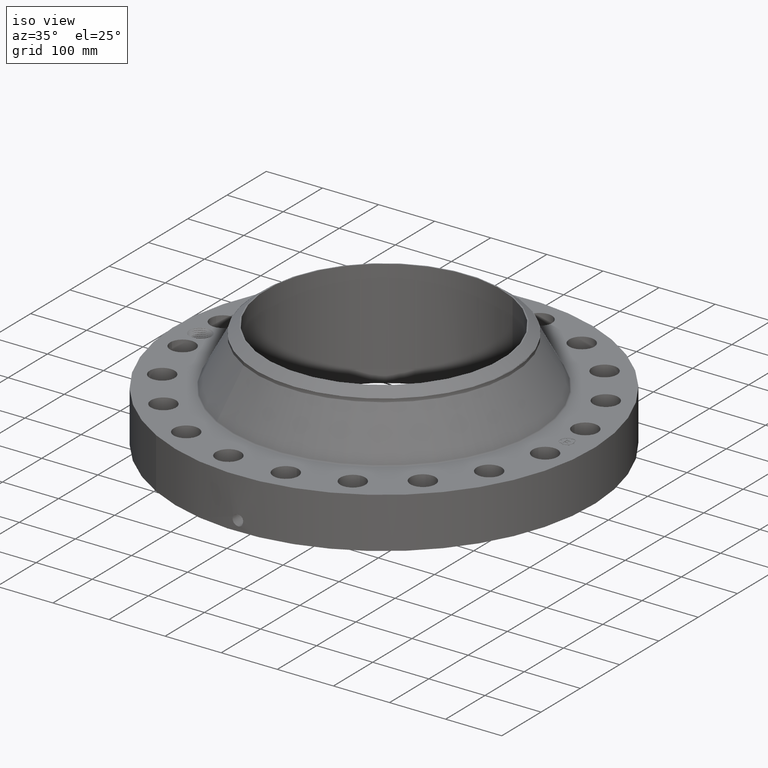
[diagram: clean part render]
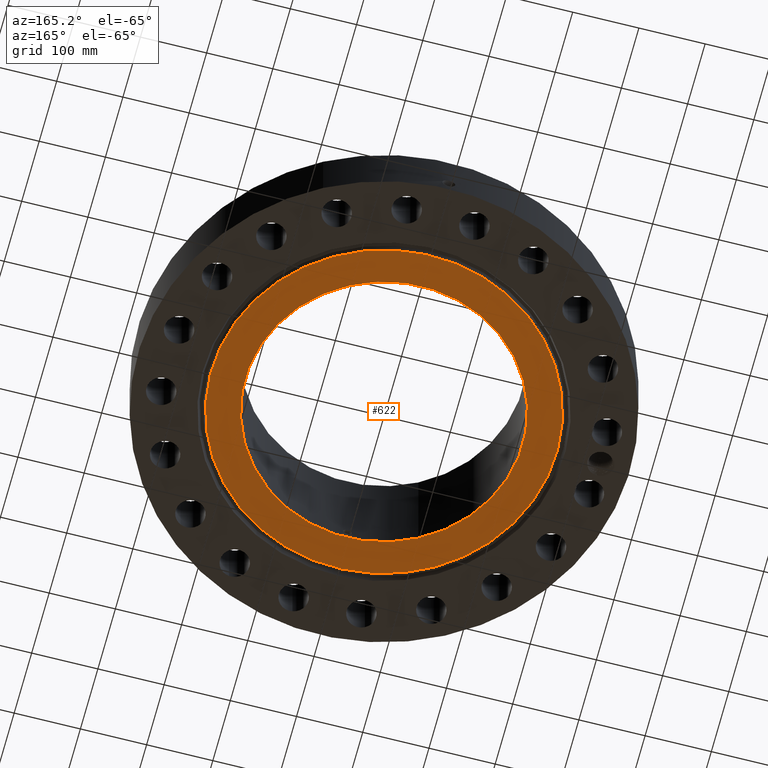
[diagram: tour spotlight — one face highlighted and labeled with its STEP entity id]
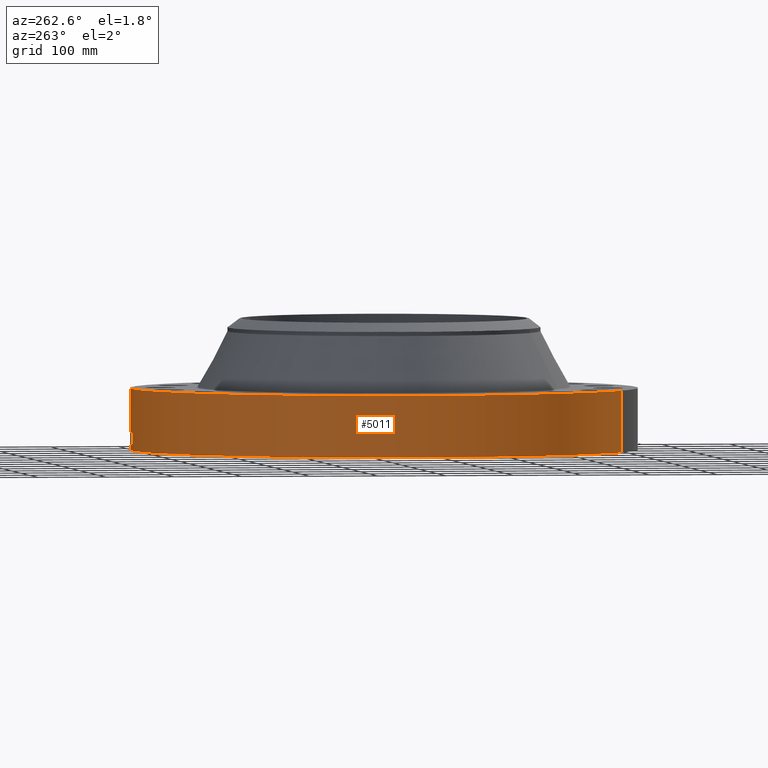
[diagram: tour spotlight — one face highlighted and labeled with its STEP entity id]
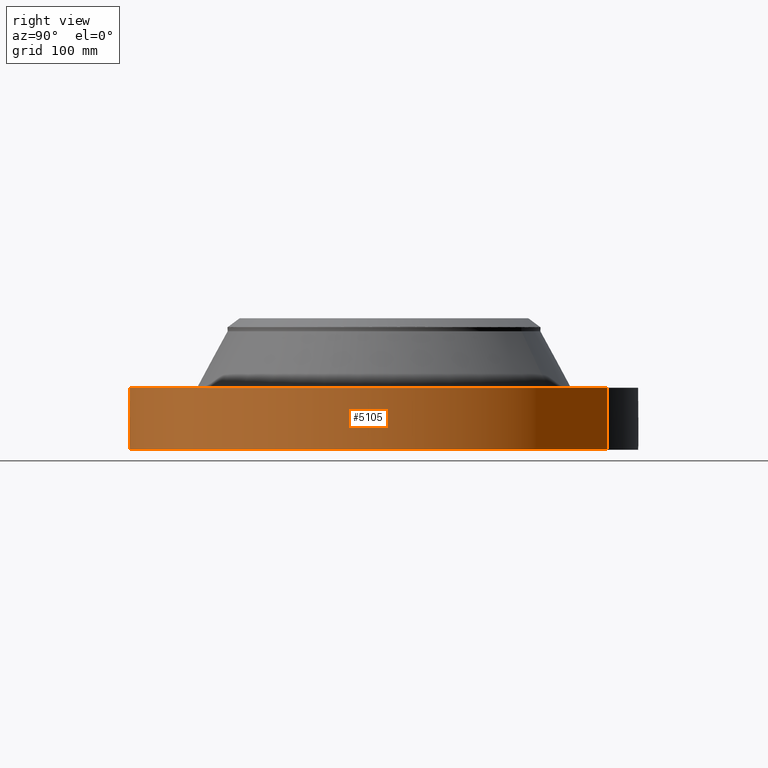
[diagram: tour spotlight — one face highlighted and labeled with its STEP entity id]
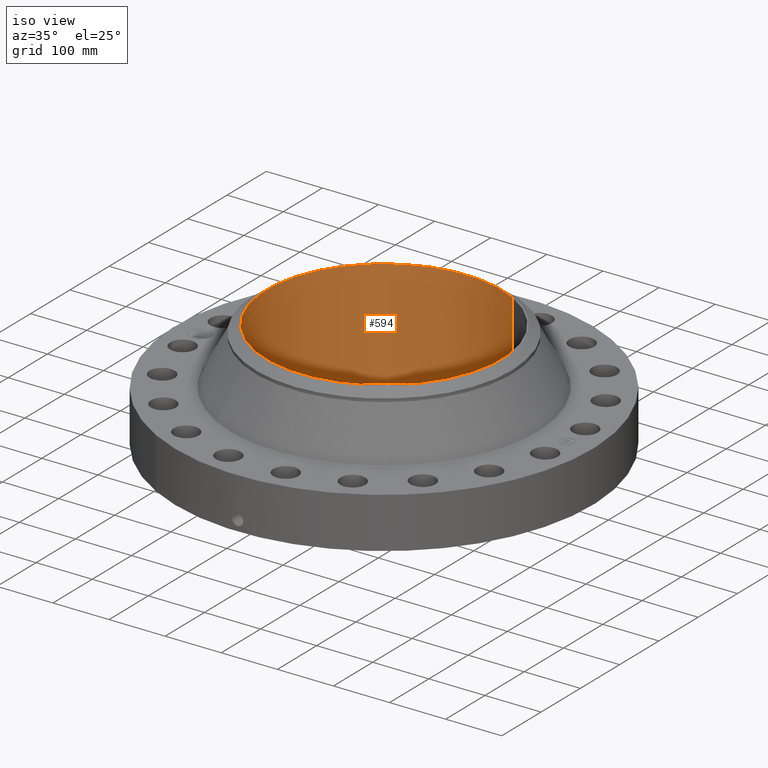
[diagram: tour spotlight — one face highlighted and labeled with its STEP entity id]
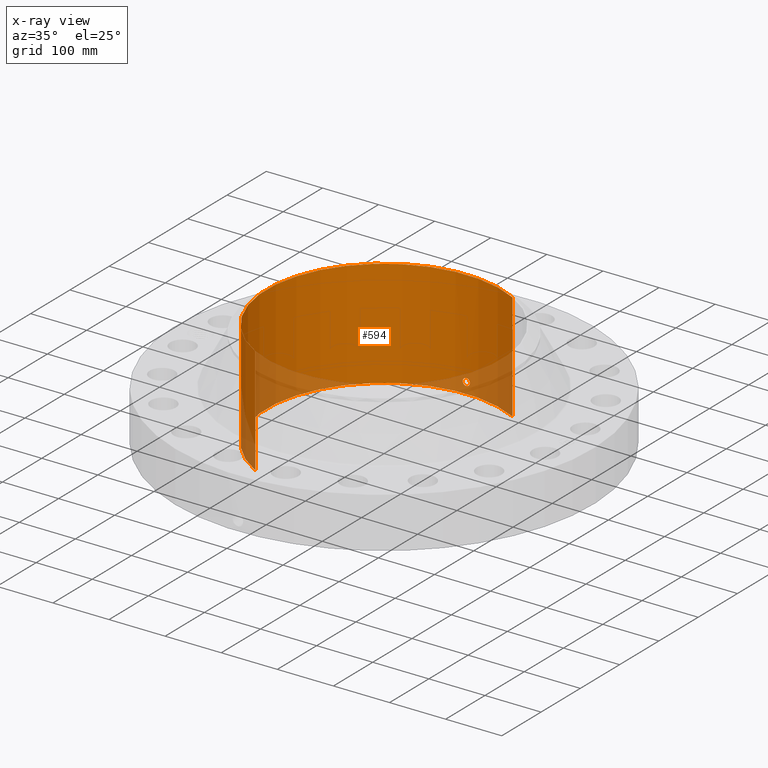
[diagram: x-ray of the same camera — body ghosted, this tour face saturated]
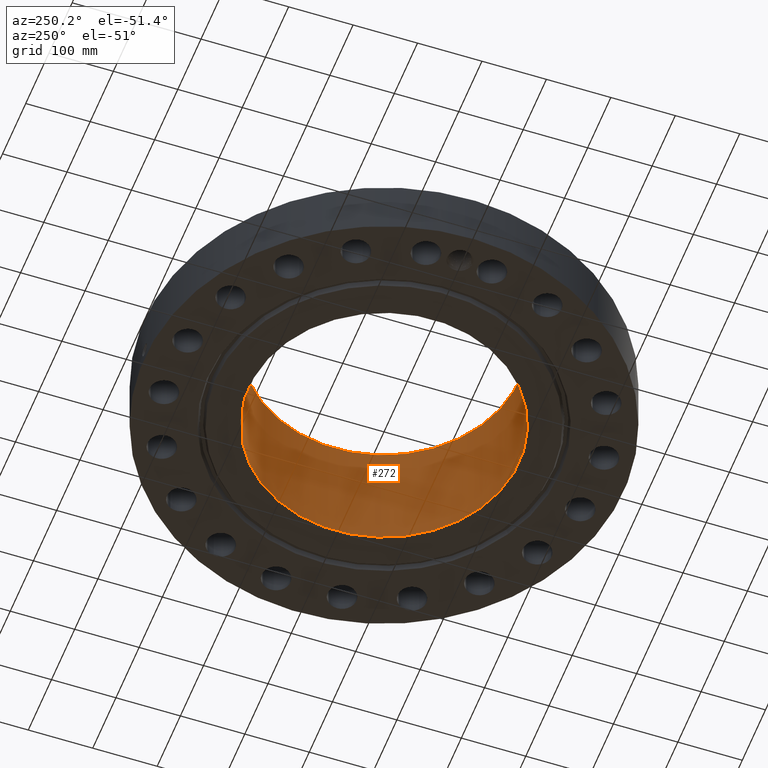
[diagram: tour spotlight — one face highlighted and labeled with its STEP entity id]
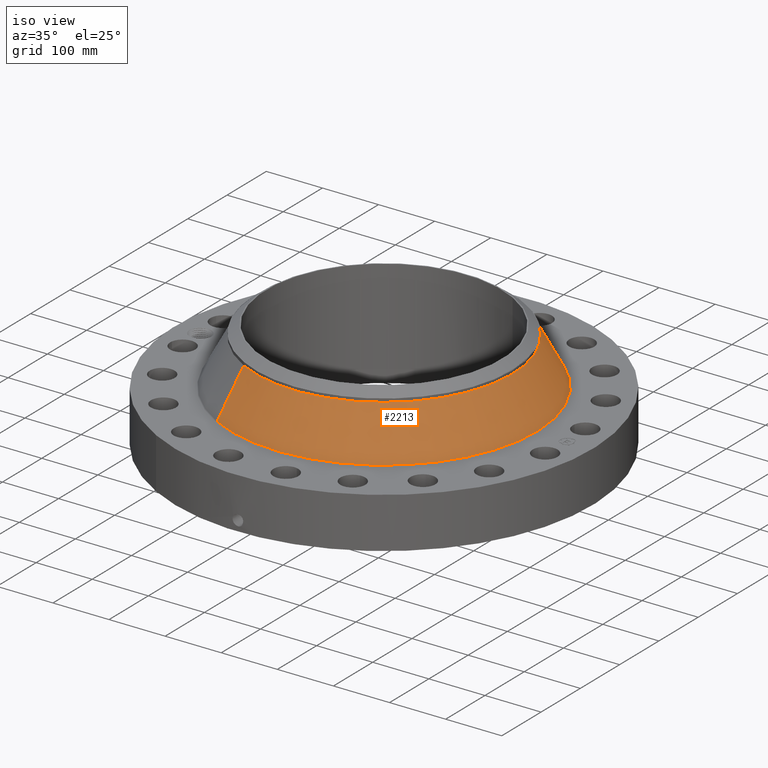
[diagram: tour spotlight — one face highlighted and labeled with its STEP entity id]
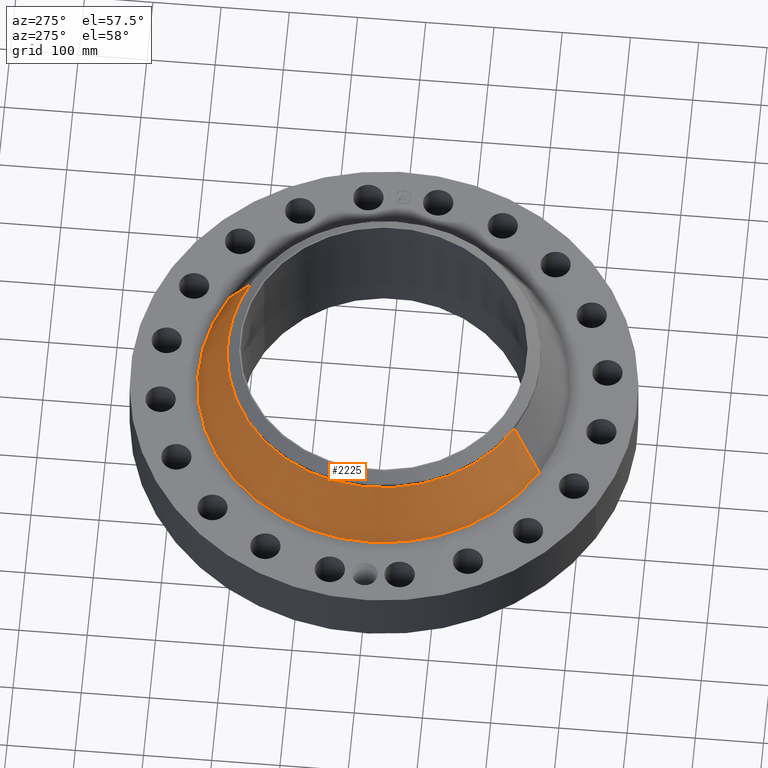
[diagram: tour spotlight — one face highlighted and labeled with its STEP entity id]
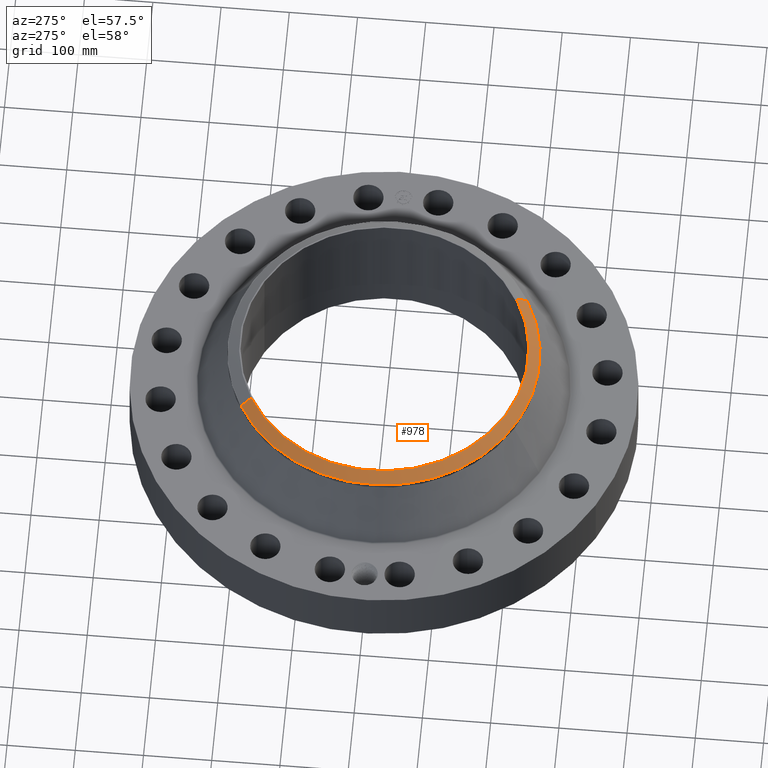
[diagram: tour spotlight — one face highlighted and labeled with its STEP entity id]
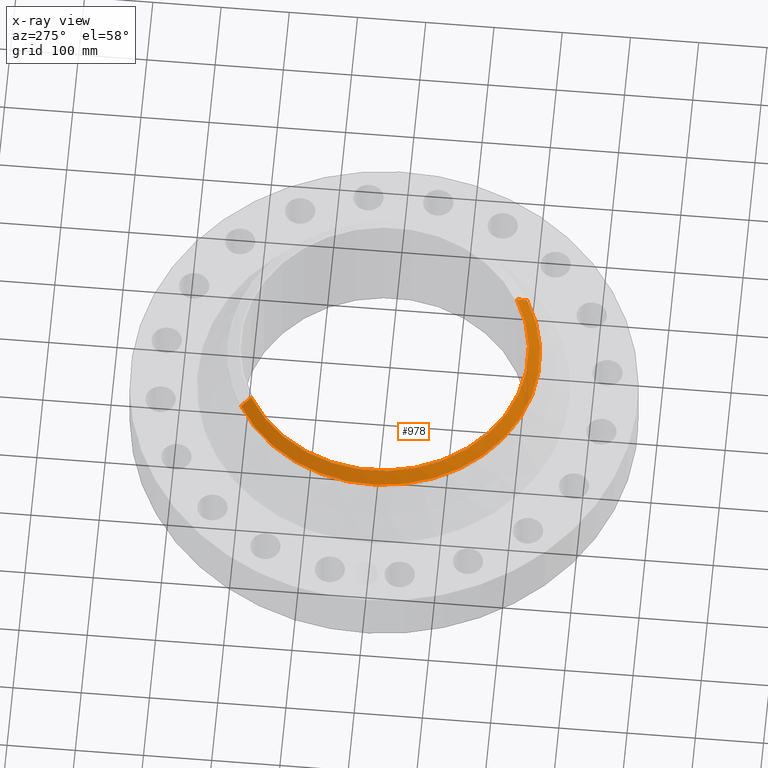
[diagram: x-ray of the same camera — body ghosted, this tour face saturated]
A machine part: a face-by-face anatomy tour. The part has 883 B-rep faces; the first image is the clean iso view, then the 8 largest visible faces are spotlighted one at a time (largest first), each with its STEP entity span.

Face 1 — auxiliary view, entity #622. In plain terms, the highlighted planar face has unit normal (0, 0, -1).
Definition (entity closure, byte-faithful):
#252=AXIS2_PLACEMENT_3D('Circle Axis2P3D',#250,#251,$) ;
#543=AXIS2_PLACEMENT_3D('Circle Axis2P3D',#541,#542,$) ;
#598=AXIS2_PLACEMENT_3D('Plane Axis2P3D',#595,#596,#597) ;
#602=AXIS2_PLACEMENT_3D('Circle Axis2P3D',#600,#601,$) ;
#611=AXIS2_PLACEMENT_3D('Circle Axis2P3D',#609,#610,$) ;
#247=CARTESIAN_POINT('Vertex',(3.9552606935,7.24005613562,-5.4829281972E-014)) ;
#250=CARTESIAN_POINT('Axis2P3D Location',(0.,0.,-5.4829281972E-014)) ;
#254=CARTESIAN_POINT('Vertex',(-3.9552606935,-7.24005613562,-5.4829281972E-014)) ;
#541=CARTESIAN_POINT('Axis2P3D Location',(0.,0.,-5.4829281972E-014)) ;
#595=CARTESIAN_POINT('Axis2P3D Location',(0.,8.25000000003,0.)) ;
#600=CARTESIAN_POINT('Axis2P3D Location',(0.,1.1189649382E-015,0.)) ;
#604=CARTESIAN_POINT('Vertex',(-4.92154286656,9.00882378912,-3.49676543189E-017)) ;
#606=CARTESIAN_POINT('Vertex',(4.92154286656,-9.00882378912,0.)) ;
#609=CARTESIAN_POINT('Axis2P3D Location',(-4.47585975282E-015,1.1189649382E-015,0.)) ;
#251=DIRECTION('Axis2P3D Direction',(0.,0.,-0.0393700787402)) ;
#542=DIRECTION('Axis2P3D Direction',(0.,0.,-0.0393700787402)) ;
#596=DIRECTION('Axis2P3D Direction',(0.,0.,-0.0393700787402)) ;
#597=DIRECTION('Axis2P3D XDirection',(0.0393700787402,0.,0.)) ;
#601=DIRECTION('Axis2P3D Direction',(0.,0.,-0.0393700787402)) ;
#610=DIRECTION('Axis2P3D Direction',(0.,0.,-0.0393700787402)) ;
#615=ORIENTED_EDGE('',*,*,#608,.T.) ;
#616=ORIENTED_EDGE('',*,*,#613,.T.) ;
#619=ORIENTED_EDGE('',*,*,#256,.F.) ;
#620=ORIENTED_EDGE('',*,*,#545,.F.) ;
#621=FACE_BOUND('',#618,.T.) ;
#622=ADVANCED_FACE('PartBody',(#617,#621),#599,.T.) ;
#253=CIRCLE('generated circle',#252,8.25000000003) ;
#544=CIRCLE('generated circle',#543,8.25000000003) ;
#603=CIRCLE('generated circle',#602,10.2655) ;
#612=CIRCLE('generated circle',#611,10.2655) ;
#256=EDGE_CURVE('',#248,#255,#253,.T.) ;
#545=EDGE_CURVE('',#255,#248,#544,.T.) ;
#608=EDGE_CURVE('',#605,#607,#603,.T.) ;
#613=EDGE_CURVE('',#607,#605,#612,.T.) ;
#614=EDGE_LOOP('',(#615,#616)) ;
#618=EDGE_LOOP('',(#619,#620)) ;
#617=FACE_OUTER_BOUND('',#614,.T.) ;
#599=PLANE('',#598) ;
#248=VERTEX_POINT('',#247) ;
#255=VERTEX_POINT('',#254) ;
#605=VERTEX_POINT('',#604) ;
#607=VERTEX_POINT('',#606) ;

Face 2 — auxiliary view, entity #5011. In plain terms, the highlighted cylindrical surface (partial cylindrical patch) has radius 371.475 mm, axis along (0, 0, -1).
Definition (entity closure, byte-faithful):
#3583=AXIS2_PLACEMENT_3D('Circle Axis2P3D',#3581,#3582,$) ;
#4270=AXIS2_PLACEMENT_3D('Circle Axis2P3D',#4268,#4269,$) ;
#4906=AXIS2_PLACEMENT_3D('Cylinder Axis2P3D',#4903,#4904,#4905) ;
#3576=CARTESIAN_POINT('Vertex',(7.01159850211,12.8346449677,3.56200000001)) ;
#3578=CARTESIAN_POINT('Vertex',(-7.01159850211,-12.8346449677,3.56200000001)) ;
#3581=CARTESIAN_POINT('Axis2P3D Location',(0.,0.,3.56200000001)) ;
#4268=CARTESIAN_POINT('Axis2P3D Location',(0.,0.,0.)) ;
#4272=CARTESIAN_POINT('Vertex',(-7.01159850211,-12.8346449677,2.23792987641E-015)) ;
#4274=CARTESIAN_POINT('Vertex',(7.01159850211,12.8346449677,2.23792987641E-015)) ;
#4903=CARTESIAN_POINT('Axis2P3D Location',(0.,0.,3.78100000002)) ;
#4908=CARTESIAN_POINT('Line Origine',(-7.01159850211,-12.8346449677,1.78100000001)) ;
#4913=CARTESIAN_POINT('Line Origine',(7.01159850211,12.8346449677,1.78100000001)) ;
#4925=CARTESIAN_POINT('Control Point',(-0.000716086753263,14.6249999825,1.1041184612)) ;
#4926=CARTESIAN_POINT('Control Point',(-0.0190203187337,14.6249990863,1.10408148988)) ;
#4927=CARTESIAN_POINT('Control Point',(-0.0373213430786,14.6249635537,1.10262130561)) ;
#4928=CARTESIAN_POINT('Control Point',(-0.0553996221662,14.6248950726,1.09975560669)) ;
#4929=CARTESIAN_POINT('Vertex',(-0.000715719218029,14.6249999825,1.10411851049)) ;
#4931=CARTESIAN_POINT('Vertex',(-0.0553907382761,14.6248953593,1.09975703323)) ;
#4935=CARTESIAN_POINT('Control Point',(-0.0553906426159,14.6248951066,1.09975648393)) ;
#4936=CARTESIAN_POINT('Control Point',(-0.0957910872276,14.6247420931,1.09531626056)) ;
#4937=CARTESIAN_POINT('Control Point',(-0.13554731312,14.6244176887,1.08352583264)) ;
#4938=CARTESIAN_POINT('Control Point',(-0.172161792286,14.6239866425,1.06517074421)) ;
#4939=CARTESIAN_POINT('Vertex',(-0.172161792286,14.6239866425,1.06517074421)) ;
#4943=CARTESIAN_POINT('Control Point',(-0.0309704717696,14.6249672079,0.341185931315)) ;
#4944=CARTESIAN_POINT('Control Point',(-0.0960970499712,14.624829293,0.34943039741)) ;
#4945=CARTESIAN_POINT('Control Point',(-0.159165957786,14.6243332142,0.37129232546)) ;
#4946=CARTESIAN_POINT('Control Point',(-0.216216294319,14.6235308002,0.406104490881)) ;
#4947=CARTESIAN_POINT('Control Point',(-0.288565984677,14.6222181906,0.474194043713)) ;
#4948=CARTESIAN_POINT('Control Point',(-0.336122439635,14.6211483161,0.558637787357)) ;
#4949=CARTESIAN_POINT('Control Point',(-0.349159052226,14.6208369788,0.588701529227)) ;
#4950=CARTESIAN_POINT('Control Point',(-0.371366298723,14.620290059,0.658954862142)) ;
#4951=CARTESIAN_POINT('Control Point',(-0.376852433391,14.6201424353,0.732133985846)) ;
#4952=CARTESIAN_POINT('Control Point',(-0.374588858488,14.620202394,0.772952421597)) ;
#4953=CARTESIAN_POINT('Control Point',(-0.356196992636,14.620681159,0.870678338789)) ;
#4954=CARTESIAN_POINT('Control Point',(-0.307903907605,14.6218049341,0.957874328975)) ;
#4955=CARTESIAN_POINT('Control Point',(-0.269657987085,14.6226140453,1.00315422223)) ;
#4956=CARTESIAN_POINT('Control Point',(-0.223443498129,14.6233829254,1.03946287241)) ;
#4957=CARTESIAN_POINT('Control Point',(-0.172161792286,14.6239866425,1.06517074421)) ;
#4958=CARTESIAN_POINT('Vertex',(-0.0309704717696,14.6249672079,0.341185931315)) ;
#4962=CARTESIAN_POINT('Control Point',(-0.0309704717696,14.6249672079,0.341185931315)) ;
#4963=CARTESIAN_POINT('Control Point',(-0.0206420517921,14.6249890798,0.340874084726)) ;
#4964=CARTESIAN_POINT('Control Point',(-0.0103062211378,14.625000002,0.340937171896)) ;
#4965=CARTESIAN_POINT('Control Point',(2.72878356085E-006,14.6250000001,0.341374667805)) ;
#4966=CARTESIAN_POINT('Vertex',(2.72878354058E-006,14.6250000001,0.341374667805)) ;
#4970=CARTESIAN_POINT('Control Point',(0.192662631068,14.6237309231,0.397344435508)) ;
#4971=CARTESIAN_POINT('Control Point',(0.149019870144,14.6243059015,0.371999869199)) ;
#4972=CARTESIAN_POINT('Control Point',(0.10111907531,14.6247640417,0.353765749113)) ;
#4973=CARTESIAN_POINT('Control Point',(0.0508066407799,14.6249999906,0.343530706904)) ;
#4974=CARTESIAN_POINT('Control Point',(2.72878353486E-006,14.6250000001,0.341374667805)) ;
#4975=CARTESIAN_POINT('Vertex',(0.192662631068,14.6237309231,0.397344435508)) ;
#4979=CARTESIAN_POINT('Control Point',(0.192662631068,14.6237309231,0.397344435508)) ;
#4980=CARTESIAN_POINT('Control Point',(0.249518043754,14.6229818726,0.430361953679)) ;
#4981=CARTESIAN_POINT('Control Point',(0.299619064618,14.6220454516,0.474691396492)) ;
#4982=CARTESIAN_POINT('Control Point',(0.339823000113,14.6210933496,0.528791236192)) ;
#4983=CARTESIAN_POINT('Control Point',(0.384112236424,14.6199651971,0.626956102141)) ;
#4984=CARTESIAN_POINT('Control Point',(0.392725031463,14.6197247345,0.732244386041)) ;
#4985=CARTESIAN_POINT('Control Point',(0.390620686216,14.6197828204,0.772393678422)) ;
#4986=CARTESIAN_POINT('Control Point',(0.37648731203,14.6201662088,0.847281981545)) ;
#4987=CARTESIAN_POINT('Control Point',(0.344392716062,14.6209577611,0.91570162559)) ;
#4988=CARTESIAN_POINT('Control Point',(0.325332832522,14.6214042256,0.946122653921)) ;
#4989=CARTESIAN_POINT('Control Point',(0.263575029133,14.6227270884,1.0225997885)) ;
#4990=CARTESIAN_POINT('Control Point',(0.180406457829,14.6240432514,1.07561246051)) ;
#4991=CARTESIAN_POINT('Control Point',(0.121571567778,14.6246891249,1.0976710855)) ;
#4992=CARTESIAN_POINT('Control Point',(0.0603045228502,14.6250001067,1.10711089422)) ;
#4993=CARTESIAN_POINT('Control Point',(-2.58579355531E-005,14.625,1.1041529843)) ;
#4994=CARTESIAN_POINT('Vertex',(-2.58579355479E-005,14.625,1.1041529843)) ;
#4998=CARTESIAN_POINT('Control Point',(-0.000715719208403,14.6249999825,1.10411851047)) ;
#4999=CARTESIAN_POINT('Control Point',(-0.000370813091107,14.6249999994,1.10413607165)) ;
#5000=CARTESIAN_POINT('Control Point',(-2.58579406625E-005,14.625,1.1041529843)) ;
#3582=DIRECTION('Axis2P3D Direction',(0.,0.,-0.0393700787402)) ;
#4269=DIRECTION('Axis2P3D Direction',(0.,0.,-0.0393700787402)) ;
#4904=DIRECTION('Axis2P3D Direction',(0.,0.,-0.0393700787402)) ;
#4905=DIRECTION('Axis2P3D XDirection',(0.0188750212049,0.0345504945626,0.)) ;
#4909=DIRECTION('Vector Direction',(0.,0.,-0.0393700787402)) ;
#4914=DIRECTION('Vector Direction',(0.,0.,-0.0393700787402)) ;
#4910=VECTOR('Line Direction',#4909,0.0393700787402) ;
#4915=VECTOR('Line Direction',#4914,0.0393700787402) ;
#4919=ORIENTED_EDGE('',*,*,#4276,.F.) ;
#4920=ORIENTED_EDGE('',*,*,#4912,.T.) ;
#4921=ORIENTED_EDGE('',*,*,#3585,.T.) ;
#4922=ORIENTED_EDGE('',*,*,#4917,.F.) ;
#5003=ORIENTED_EDGE('',*,*,#4933,.T.) ;
#5004=ORIENTED_EDGE('',*,*,#4941,.T.) ;
#5005=ORIENTED_EDGE('',*,*,#4960,.F.) ;
#5006=ORIENTED_EDGE('',*,*,#4968,.T.) ;
#5007=ORIENTED_EDGE('',*,*,#4977,.F.) ;
#5008=ORIENTED_EDGE('',*,*,#4996,.T.) ;
#5009=ORIENTED_EDGE('',*,*,#5001,.F.) ;
#5010=FACE_BOUND('',#5002,.T.) ;
#5011=ADVANCED_FACE('PartBody',(#4923,#5010),#4907,.T.) ;
#4924=B_SPLINE_CURVE_WITH_KNOTS('',3,(#4925,#4926,#4927,#4928),.UNSPECIFIED.,.F.,.U.,(4,4),(34.6165608329,36.6472417623),.UNSPECIFIED.) ;
#4934=B_SPLINE_CURVE_WITH_KNOTS('',3,(#4935,#4936,#4937,#4938),.UNSPECIFIED.,.F.,.U.,(4,4),(0.,4.56688664179),.UNSPECIFIED.) ;
#4942=B_SPLINE_CURVE_WITH_KNOTS('',5,(#4943,#4944,#4945,#4946,#4947,#4948,#4949,#4950,#4951,#4952,#4953,#4954,#4955,#4956,#4957),.UNSPECIFIED.,.F.,.U.,(6,3,3,3,6),(0.,11.4086060948,17.2512745479,24.6138259228,35.2743509026),.UNSPECIFIED.) ;
#4961=B_SPLINE_CURVE_WITH_KNOTS('',3,(#4962,#4963,#4964,#4965),.UNSPECIFIED.,.F.,.U.,(4,4),(0.,1.07740583904),.UNSPECIFIED.) ;
#4969=B_SPLINE_CURVE_WITH_KNOTS('',4,(#4970,#4971,#4972,#4973,#4974),.UNSPECIFIED.,.F.,.U.,(5,5),(0.,7.07947066279),.UNSPECIFIED.) ;
#4978=B_SPLINE_CURVE_WITH_KNOTS('',5,(#4979,#4980,#4981,#4982,#4983,#4984,#4985,#4986,#4987,#4988,#4989,#4990,#4991,#4992,#4993),.UNSPECIFIED.,.F.,.U.,(6,3,3,3,6),(0.,11.5284358899,18.6014747724,25.0195536906,36.2965539893),.UNSPECIFIED.) ;
#4997=B_SPLINE_CURVE_WITH_KNOTS('',2,(#4998,#4999,#5000),.UNSPECIFIED.,.F.,.U.,(3,3),(1.02315573588,1.04894744785),.UNSPECIFIED.) ;
#3584=CIRCLE('generated circle',#3583,14.6250000001) ;
#4271=CIRCLE('generated circle',#4270,14.6250000001) ;
#4907=CYLINDRICAL_SURFACE('generated cylinder',#4906,14.6250000001) ;
#3585=EDGE_CURVE('',#3579,#3577,#3584,.T.) ;
#4276=EDGE_CURVE('',#4273,#4275,#4271,.T.) ;
#4912=EDGE_CURVE('',#4273,#3579,#4911,.F.) ;
#4917=EDGE_CURVE('',#4275,#3577,#4916,.F.) ;
#4933=EDGE_CURVE('',#4930,#4932,#4924,.T.) ;
#4941=EDGE_CURVE('',#4932,#4940,#4934,.T.) ;
#4960=EDGE_CURVE('',#4959,#4940,#4942,.T.) ;
#4968=EDGE_CURVE('',#4959,#4967,#4961,.T.) ;
#4977=EDGE_CURVE('',#4976,#4967,#4969,.T.) ;
#4996=EDGE_CURVE('',#4976,#4995,#4978,.T.) ;
#5001=EDGE_CURVE('',#4930,#4995,#4997,.T.) ;
#4918=EDGE_LOOP('',(#4919,#4920,#4921,#4922)) ;
#5002=EDGE_LOOP('',(#5003,#5004,#5005,#5006,#5007,#5008,#5009)) ;
#4923=FACE_OUTER_BOUND('',#4918,.T.) ;
#4911=LINE('Line',#4908,#4910) ;
#4916=LINE('Line',#4913,#4915) ;
#3577=VERTEX_POINT('',#3576) ;
#3579=VERTEX_POINT('',#3578) ;
#4273=VERTEX_POINT('',#4272) ;
#4275=VERTEX_POINT('',#4274) ;
#4930=VERTEX_POINT('',#4929) ;
#4932=VERTEX_POINT('',#4931) ;
#4940=VERTEX_POINT('',#4939) ;
#4959=VERTEX_POINT('',#4958) ;
#4967=VERTEX_POINT('',#4966) ;
#4976=VERTEX_POINT('',#4975) ;
#4995=VERTEX_POINT('',#4994) ;

Face 3 — right view, entity #5105. In plain terms, the highlighted cylindrical surface (partial cylindrical patch) has radius 371.475 mm, axis along (0, 0, -1).
Definition (entity closure, byte-faithful):
#3574=AXIS2_PLACEMENT_3D('Circle Axis2P3D',#3572,#3573,$) ;
#4279=AXIS2_PLACEMENT_3D('Circle Axis2P3D',#4277,#4278,$) ;
#4906=AXIS2_PLACEMENT_3D('Cylinder Axis2P3D',#4903,#4904,#4905) ;
#3572=CARTESIAN_POINT('Axis2P3D Location',(0.,0.,3.56200000001)) ;
#3576=CARTESIAN_POINT('Vertex',(7.01159850211,12.8346449677,3.56200000001)) ;
#3578=CARTESIAN_POINT('Vertex',(-7.01159850211,-12.8346449677,3.56200000001)) ;
#4272=CARTESIAN_POINT('Vertex',(-7.01159850211,-12.8346449677,2.23792987641E-015)) ;
#4274=CARTESIAN_POINT('Vertex',(7.01159850211,12.8346449677,2.23792987641E-015)) ;
#4277=CARTESIAN_POINT('Axis2P3D Location',(0.,0.,0.)) ;
#4903=CARTESIAN_POINT('Axis2P3D Location',(0.,0.,3.78100000002)) ;
#4908=CARTESIAN_POINT('Line Origine',(-7.01159850211,-12.8346449677,1.78100000001)) ;
#4913=CARTESIAN_POINT('Line Origine',(7.01159850211,12.8346449677,1.78100000001)) ;
#5019=CARTESIAN_POINT('Control Point',(0.000716086752105,-14.6249999825,1.1041184612)) ;
#5020=CARTESIAN_POINT('Control Point',(0.0190203187313,-14.6249990863,1.10408148988)) ;
#5021=CARTESIAN_POINT('Control Point',(0.0373213430756,-14.6249635537,1.10262130561)) ;
#5022=CARTESIAN_POINT('Control Point',(0.0553996221663,-14.6248950726,1.09975560669)) ;
#5023=CARTESIAN_POINT('Vertex',(0.000715719218022,-14.6249999825,1.10411851049)) ;
#5025=CARTESIAN_POINT('Vertex',(0.0553907382761,-14.6248953593,1.09975703323)) ;
#5029=CARTESIAN_POINT('Control Point',(0.0553906426159,-14.6248951066,1.09975648393)) ;
#5030=CARTESIAN_POINT('Control Point',(0.0957910872272,-14.6247420931,1.09531626056)) ;
#5031=CARTESIAN_POINT('Control Point',(0.13554731312,-14.6244176887,1.08352583264)) ;
#5032=CARTESIAN_POINT('Control Point',(0.172161792285,-14.6239866425,1.06517074421)) ;
#5033=CARTESIAN_POINT('Vertex',(0.172161792286,-14.6239866425,1.06517074421)) ;
#5037=CARTESIAN_POINT('Control Point',(0.0309704717696,-14.6249672079,0.341185931315)) ;
#5038=CARTESIAN_POINT('Control Point',(0.0960970499363,-14.624829293,0.349430397406)) ;
#5039=CARTESIAN_POINT('Control Point',(0.159165957717,-14.6243332142,0.371292325443)) ;
#5040=CARTESIAN_POINT('Control Point',(0.216216294292,-14.6235308002,0.406104490876)) ;
#5041=CARTESIAN_POINT('Control Point',(0.288565984616,-14.6222181906,0.474194043651)) ;
#5042=CARTESIAN_POINT('Control Point',(0.336122439567,-14.6211483161,0.558637787228)) ;
#5043=CARTESIAN_POINT('Control Point',(0.34915905221,-14.6208369788,0.588701529195)) ;
#5044=CARTESIAN_POINT('Control Point',(0.371366298744,-14.620290059,0.658954862193)) ;
#5045=CARTESIAN_POINT('Control Point',(0.376852433409,-14.6201424353,0.732133985989)) ;
#5046=CARTESIAN_POINT('Control Point',(0.37458885854,-14.620202394,0.772952421278)) ;
#5047=CARTESIAN_POINT('Control Point',(0.356196992719,-14.620681159,0.870678338635)) ;
#5048=CARTESIAN_POINT('Control Point',(0.307903907626,-14.6218049341,0.957874328959)) ;
#5049=CARTESIAN_POINT('Control Point',(0.269657987137,-14.6226140453,1.00315422218)) ;
#5050=CARTESIAN_POINT('Control Point',(0.223443498158,-14.6233829254,1.0394628724)) ;
#5051=CARTESIAN_POINT('Control Point',(0.172161792286,-14.6239866425,1.06517074421)) ;
#5052=CARTESIAN_POINT('Vertex',(0.0309704717696,-14.6249672079,0.341185931315)) ;
#5056=CARTESIAN_POINT('Control Point',(0.0309704717696,-14.6249672079,0.341185931315)) ;
#5057=CARTESIAN_POINT('Control Point',(0.0206420517921,-14.6249890798,0.340874084726)) ;
#5058=CARTESIAN_POINT('Control Point',(0.0103062211378,-14.625000002,0.340937171896)) ;
#5059=CARTESIAN_POINT('Control Point',(-2.72878352367E-006,-14.6250000001,0.341374667805)) ;
#5060=CARTESIAN_POINT('Vertex',(-2.72878354229E-006,-14.6250000001,0.341374667805)) ;
#5064=CARTESIAN_POINT('Control Point',(-0.192662631068,-14.6237309231,0.397344435508)) ;
#5065=CARTESIAN_POINT('Control Point',(-0.149019870144,-14.6243059015,0.371999869199)) ;
#5066=CARTESIAN_POINT('Control Point',(-0.10111907531,-14.6247640417,0.353765749111)) ;
#5067=CARTESIAN_POINT('Control Point',(-0.0508066407808,-14.6249999906,0.343530706904)) ;
#5068=CARTESIAN_POINT('Control Point',(-2.72878353668E-006,-14.6250000001,0.341374667805)) ;
#5069=CARTESIAN_POINT('Vertex',(-0.192662631068,-14.6237309231,0.397344435508)) ;
#5073=CARTESIAN_POINT('Control Point',(-0.192662631068,-14.6237309231,0.397344435508)) ;
#5074=CARTESIAN_POINT('Control Point',(-0.24951804378,-14.6229818726,0.430361953694)) ;
#5075=CARTESIAN_POINT('Control Point',(-0.299619064664,-14.6220454516,0.474691396532)) ;
#5076=CARTESIAN_POINT('Control Point',(-0.339823000124,-14.6210933496,0.528791236196)) ;
#5077=CARTESIAN_POINT('Control Point',(-0.384112236441,-14.6199651971,0.62695610218)) ;
#5078=CARTESIAN_POINT('Control Point',(-0.392725031464,-14.6197247345,0.732244386112)) ;
#5079=CARTESIAN_POINT('Control Point',(-0.39062068621,-14.6197828204,0.772393678485)) ;
#5080=CARTESIAN_POINT('Control Point',(-0.376487311999,-14.6201662088,0.847281981668)) ;
#5081=CARTESIAN_POINT('Control Point',(-0.344392715978,-14.6209577611,0.915701625758)) ;
#5082=CARTESIAN_POINT('Control Point',(-0.325332832559,-14.6214042256,0.946122653882)) ;
#5083=CARTESIAN_POINT('Control Point',(-0.263575029131,-14.6227270884,1.02259978851)) ;
#5084=CARTESIAN_POINT('Control Point',(-0.180406457765,-14.6240432514,1.07561246054)) ;
#5085=CARTESIAN_POINT('Control Point',(-0.121571567782,-14.6246891249,1.0976710855)) ;
#5086=CARTESIAN_POINT('Control Point',(-0.0603045228523,-14.6250001067,1.10711089422)) ;
#5087=CARTESIAN_POINT('Control Point',(2.58579355253E-005,-14.625,1.1041529843)) ;
#5088=CARTESIAN_POINT('Vertex',(2.58579355461E-005,-14.625,1.1041529843)) ;
#5092=CARTESIAN_POINT('Control Point',(0.000715719208393,-14.6249999825,1.10411851047)) ;
#5093=CARTESIAN_POINT('Control Point',(0.000370813091086,-14.6249999994,1.10413607165)) ;
#5094=CARTESIAN_POINT('Control Point',(2.58579406302E-005,-14.625,1.1041529843)) ;
#3573=DIRECTION('Axis2P3D Direction',(0.,0.,-0.0393700787402)) ;
#4278=DIRECTION('Axis2P3D Direction',(0.,0.,-0.0393700787402)) ;
#4904=DIRECTION('Axis2P3D Direction',(0.,0.,-0.0393700787402)) ;
#4905=DIRECTION('Axis2P3D XDirection',(0.0188750212049,0.0345504945626,0.)) ;
#4909=DIRECTION('Vector Direction',(0.,0.,-0.0393700787402)) ;
#4914=DIRECTION('Vector Direction',(0.,0.,-0.0393700787402)) ;
#4910=VECTOR('Line Direction',#4909,0.0393700787402) ;
#4915=VECTOR('Line Direction',#4914,0.0393700787402) ;
#5013=ORIENTED_EDGE('',*,*,#4281,.F.) ;
#5014=ORIENTED_EDGE('',*,*,#4917,.T.) ;
#5015=ORIENTED_EDGE('',*,*,#3580,.T.) ;
#5016=ORIENTED_EDGE('',*,*,#4912,.F.) ;
#5097=ORIENTED_EDGE('',*,*,#5027,.T.) ;
#5098=ORIENTED_EDGE('',*,*,#5035,.T.) ;
#5099=ORIENTED_EDGE('',*,*,#5054,.F.) ;
#5100=ORIENTED_EDGE('',*,*,#5062,.T.) ;
#5101=ORIENTED_EDGE('',*,*,#5071,.F.) ;
#5102=ORIENTED_EDGE('',*,*,#5090,.T.) ;
#5103=ORIENTED_EDGE('',*,*,#5095,.F.) ;
#5104=FACE_BOUND('',#5096,.T.) ;
#5105=ADVANCED_FACE('PartBody',(#5017,#5104),#4907,.T.) ;
#5018=B_SPLINE_CURVE_WITH_KNOTS('',3,(#5019,#5020,#5021,#5022),.UNSPECIFIED.,.F.,.U.,(4,4),(34.6165608153,36.6472417447),.UNSPECIFIED.) ;
#5028=B_SPLINE_CURVE_WITH_KNOTS('',3,(#5029,#5030,#5031,#5032),.UNSPECIFIED.,.F.,.U.,(4,4),(0.,4.56688664174),.UNSPECIFIED.) ;
#5036=B_SPLINE_CURVE_WITH_KNOTS('',5,(#5037,#5038,#5039,#5040,#5041,#5042,#5043,#5044,#5045,#5046,#5047,#5048,#5049,#5050,#5051),.UNSPECIFIED.,.F.,.U.,(6,3,3,3,6),(0.,11.4086060887,17.2512745367,24.6138259328,35.2743509185),.UNSPECIFIED.) ;
#5055=B_SPLINE_CURVE_WITH_KNOTS('',3,(#5056,#5057,#5058,#5059),.UNSPECIFIED.,.F.,.U.,(4,4),(0.,1.07740583904),.UNSPECIFIED.) ;
#5063=B_SPLINE_CURVE_WITH_KNOTS('',4,(#5064,#5065,#5066,#5067,#5068),.UNSPECIFIED.,.F.,.U.,(5,5),(0.,7.07947066291),.UNSPECIFIED.) ;
#5072=B_SPLINE_CURVE_WITH_KNOTS('',5,(#5073,#5074,#5075,#5076,#5077,#5078,#5079,#5080,#5081,#5082,#5083,#5084,#5085,#5086,#5087),.UNSPECIFIED.,.F.,.U.,(6,3,3,3,6),(0.,11.5284358951,18.6014747779,25.0195537071,36.2965540061),.UNSPECIFIED.) ;
#5091=B_SPLINE_CURVE_WITH_KNOTS('',2,(#5092,#5093,#5094),.UNSPECIFIED.,.F.,.U.,(3,3),(1.02315573588,1.04894744785),.UNSPECIFIED.) ;
#3575=CIRCLE('generated circle',#3574,14.6250000001) ;
#4280=CIRCLE('generated circle',#4279,14.6250000001) ;
#4907=CYLINDRICAL_SURFACE('generated cylinder',#4906,14.6250000001) ;
#3580=EDGE_CURVE('',#3577,#3579,#3575,.T.) ;
#4281=EDGE_CURVE('',#4275,#4273,#4280,.T.) ;
#4912=EDGE_CURVE('',#4273,#3579,#4911,.F.) ;
#4917=EDGE_CURVE('',#4275,#3577,#4916,.F.) ;
#5027=EDGE_CURVE('',#5024,#5026,#5018,.T.) ;
#5035=EDGE_CURVE('',#5026,#5034,#5028,.T.) ;
#5054=EDGE_CURVE('',#5053,#5034,#5036,.T.) ;
#5062=EDGE_CURVE('',#5053,#5061,#5055,.T.) ;
#5071=EDGE_CURVE('',#5070,#5061,#5063,.T.) ;
#5090=EDGE_CURVE('',#5070,#5089,#5072,.T.) ;
#5095=EDGE_CURVE('',#5024,#5089,#5091,.T.) ;
#5012=EDGE_LOOP('',(#5013,#5014,#5015,#5016)) ;
#5096=EDGE_LOOP('',(#5097,#5098,#5099,#5100,#5101,#5102,#5103)) ;
#5017=FACE_OUTER_BOUND('',#5012,.T.) ;
#4911=LINE('Line',#4908,#4910) ;
#4916=LINE('Line',#4913,#4915) ;
#3577=VERTEX_POINT('',#3576) ;
#3579=VERTEX_POINT('',#3578) ;
#4273=VERTEX_POINT('',#4272) ;
#4275=VERTEX_POINT('',#4274) ;
#5024=VERTEX_POINT('',#5023) ;
#5026=VERTEX_POINT('',#5025) ;
#5034=VERTEX_POINT('',#5033) ;
#5053=VERTEX_POINT('',#5052) ;
#5061=VERTEX_POINT('',#5060) ;
#5070=VERTEX_POINT('',#5069) ;
#5089=VERTEX_POINT('',#5088) ;

Face 4 — iso view, entity #594. An x-ray twin of the same camera follows (body ghosted, this face saturated) — the face is partly hidden behind the body. In plain terms, the highlighted cylindrical surface (partial cylindrical patch) has radius 209.55 mm, axis along (0, 0, -1).
Definition (entity closure, byte-faithful):
#232=AXIS2_PLACEMENT_3D('Cylinder Axis2P3D',#229,#230,#231) ;
#533=AXIS2_PLACEMENT_3D('Circle Axis2P3D',#531,#532,$) ;
#543=AXIS2_PLACEMENT_3D('Circle Axis2P3D',#541,#542,$) ;
#229=CARTESIAN_POINT('Axis2P3D Location',(0.,0.,3.78100000002)) ;
#238=CARTESIAN_POINT('Vertex',(3.9552606935,7.24005613562,7.56200000003)) ;
#240=CARTESIAN_POINT('Vertex',(-3.9552606935,-7.24005613562,7.56200000003)) ;
#243=CARTESIAN_POINT('Line Origine',(3.9552606935,7.24005613562,3.78100000002)) ;
#247=CARTESIAN_POINT('Vertex',(3.9552606935,7.24005613562,-5.4829281972E-014)) ;
#254=CARTESIAN_POINT('Vertex',(-3.9552606935,-7.24005613562,-5.4829281972E-014)) ;
#257=CARTESIAN_POINT('Line Origine',(-3.9552606935,-7.24005613562,3.78100000002)) ;
#531=CARTESIAN_POINT('Axis2P3D Location',(0.,0.,7.56200000003)) ;
#541=CARTESIAN_POINT('Axis2P3D Location',(0.,0.,-5.4829281972E-014)) ;
#553=CARTESIAN_POINT('Control Point',(0.219395640473,8.24708224486,0.869856384655)) ;
#554=CARTESIAN_POINT('Control Point',(0.194443177102,8.24774605074,0.915531562483)) ;
#555=CARTESIAN_POINT('Control Point',(0.157605919999,8.24863158829,0.954710739495)) ;
#556=CARTESIAN_POINT('Control Point',(0.111109683294,8.24949278377,0.983242387218)) ;
#557=CARTESIAN_POINT('Control Point',(0.0336753628549,8.25017798873,1.00588229164)) ;
#558=CARTESIAN_POINT('Control Point',(-0.0446689823214,8.24994122763,0.998056659371)) ;
#559=CARTESIAN_POINT('Control Point',(-0.0702981492766,8.2497574269,0.992044416594)) ;
#560=CARTESIAN_POINT('Control Point',(-0.143953549039,8.24894518048,0.964213721809)) ;
#561=CARTESIAN_POINT('Control Point',(-0.203240642669,8.24761932208,0.9095014914)) ;
#562=CARTESIAN_POINT('Control Point',(-0.232206728016,8.24674965402,0.86326405548)) ;
#563=CARTESIAN_POINT('Control Point',(-0.255840010921,8.24603466121,0.785116646216)) ;
#564=CARTESIAN_POINT('Control Point',(-0.248283665647,8.24626308003,0.705750360469)) ;
#565=CARTESIAN_POINT('Control Point',(-0.24204986803,8.24645425832,0.679186453203)) ;
#566=CARTESIAN_POINT('Control Point',(-0.232316018871,8.24673852637,0.653794209368)) ;
#567=CARTESIAN_POINT('Control Point',(-0.219395640473,8.24708224486,0.630143615351)) ;
#568=CARTESIAN_POINT('Vertex',(0.219395640473,8.24708224486,0.869856384655)) ;
#570=CARTESIAN_POINT('Vertex',(-0.219395640473,8.24708224486,0.630143615351)) ;
#574=CARTESIAN_POINT('Control Point',(-0.219395640473,8.24708224486,0.630143615351)) ;
#575=CARTESIAN_POINT('Control Point',(-0.194443177102,8.24774605074,0.584468437524)) ;
#576=CARTESIAN_POINT('Control Point',(-0.157605920002,8.24863158829,0.545289260514)) ;
#577=CARTESIAN_POINT('Control Point',(-0.111109683293,8.24949278377,0.516757612789)) ;
#578=CARTESIAN_POINT('Control Point',(-0.0336753628637,8.25017798873,0.494117708365)) ;
#579=CARTESIAN_POINT('Control Point',(0.0446689823033,8.24994122763,0.501943340633)) ;
#580=CARTESIAN_POINT('Control Point',(0.0702981492886,8.2497574269,0.507955583417)) ;
#581=CARTESIAN_POINT('Control Point',(0.1439535491,8.24894518048,0.535786278222)) ;
#582=CARTESIAN_POINT('Control Point',(0.203240642759,8.24761932208,0.590498508689)) ;
#583=CARTESIAN_POINT('Control Point',(0.232206727978,8.24674965403,0.636735944404)) ;
#584=CARTESIAN_POINT('Control Point',(0.255840010927,8.24603466121,0.714883353727)) ;
#585=CARTESIAN_POINT('Control Point',(0.248283665647,8.24626308003,0.794249639535)) ;
#586=CARTESIAN_POINT('Control Point',(0.24204986803,8.24645425832,0.820813546803)) ;
#587=CARTESIAN_POINT('Control Point',(0.232316018871,8.24673852637,0.846205790638)) ;
#588=CARTESIAN_POINT('Control Point',(0.219395640473,8.24708224486,0.869856384655)) ;
#230=DIRECTION('Axis2P3D Direction',(0.,0.,-0.0393700787402)) ;
#231=DIRECTION('Axis2P3D XDirection',(-0.0188750212049,-0.0345504945626,0.)) ;
#244=DIRECTION('Vector Direction',(0.,0.,-0.0393700787402)) ;
#258=DIRECTION('Vector Direction',(0.,0.,-0.0393700787402)) ;
#532=DIRECTION('Axis2P3D Direction',(0.,0.,-0.0393700787402)) ;
#542=DIRECTION('Axis2P3D Direction',(0.,0.,-0.0393700787402)) ;
#245=VECTOR('Line Direction',#244,0.0393700787402) ;
#259=VECTOR('Line Direction',#258,0.0393700787402) ;
#547=ORIENTED_EDGE('',*,*,#535,.F.) ;
#548=ORIENTED_EDGE('',*,*,#261,.T.) ;
#549=ORIENTED_EDGE('',*,*,#545,.T.) ;
#550=ORIENTED_EDGE('',*,*,#249,.F.) ;
#591=ORIENTED_EDGE('',*,*,#572,.F.) ;
#592=ORIENTED_EDGE('',*,*,#589,.F.) ;
#593=FACE_BOUND('',#590,.T.) ;
#594=ADVANCED_FACE('PartBody',(#551,#593),#233,.F.) ;
#552=B_SPLINE_CURVE_WITH_KNOTS('',5,(#553,#554,#555,#556,#557,#558,#559,#560,#561,#562,#563,#564,#565,#566,#567),.UNSPECIFIED.,.F.,.U.,(6,3,3,3,6),(0.,9.34859402513,14.0228129995,23.372845967,28.2135452795),.UNSPECIFIED.) ;
#573=B_SPLINE_CURVE_WITH_KNOTS('',5,(#574,#575,#576,#577,#578,#579,#580,#581,#582,#583,#584,#585,#586,#587,#588),.UNSPECIFIED.,.F.,.U.,(6,3,3,3,6),(0.,9.34859402484,14.0228129979,23.3728459762,28.2135452887),.UNSPECIFIED.) ;
#534=CIRCLE('generated circle',#533,8.25000000003) ;
#544=CIRCLE('generated circle',#543,8.25000000003) ;
#233=CYLINDRICAL_SURFACE('generated cylinder',#232,8.25000000003) ;
#249=EDGE_CURVE('',#239,#248,#246,.T.) ;
#261=EDGE_CURVE('',#241,#255,#260,.T.) ;
#535=EDGE_CURVE('',#241,#239,#534,.T.) ;
#545=EDGE_CURVE('',#255,#248,#544,.T.) ;
#572=EDGE_CURVE('',#569,#571,#552,.T.) ;
#589=EDGE_CURVE('',#571,#569,#573,.T.) ;
#546=EDGE_LOOP('',(#547,#548,#549,#550)) ;
#590=EDGE_LOOP('',(#591,#592)) ;
#551=FACE_OUTER_BOUND('',#546,.T.) ;
#246=LINE('Line',#243,#245) ;
#260=LINE('Line',#257,#259) ;
#239=VERTEX_POINT('',#238) ;
#241=VERTEX_POINT('',#240) ;
#248=VERTEX_POINT('',#247) ;
#255=VERTEX_POINT('',#254) ;
#569=VERTEX_POINT('',#568) ;
#571=VERTEX_POINT('',#570) ;

Face 5 — auxiliary view, entity #272. In plain terms, the highlighted cylindrical surface (partial cylindrical patch) has radius 209.55 mm, axis along (0, 0, -1).
Definition (entity closure, byte-faithful):
#232=AXIS2_PLACEMENT_3D('Cylinder Axis2P3D',#229,#230,#231) ;
#236=AXIS2_PLACEMENT_3D('Circle Axis2P3D',#234,#235,$) ;
#252=AXIS2_PLACEMENT_3D('Circle Axis2P3D',#250,#251,$) ;
#81=CARTESIAN_POINT('Control Point',(0.219395640473,-8.24708224486,0.630143615351)) ;
#82=CARTESIAN_POINT('Control Point',(0.194443177098,-8.24774605074,0.584468437516)) ;
#83=CARTESIAN_POINT('Control Point',(0.157605883766,-8.24863158637,0.545289194341)) ;
#84=CARTESIAN_POINT('Control Point',(0.111109607988,-8.24949278363,0.516757610538)) ;
#85=CARTESIAN_POINT('Control Point',(0.0336754005173,-8.2501779888,0.494117709488)) ;
#86=CARTESIAN_POINT('Control Point',(-0.0446690011608,-8.2499412276,0.501943340072)) ;
#87=CARTESIAN_POINT('Control Point',(-0.0702981658851,-8.24975742737,0.507955592298)) ;
#88=CARTESIAN_POINT('Control Point',(-0.143953515853,-8.24894517953,0.535786260434)) ;
#89=CARTESIAN_POINT('Control Point',(-0.203240709259,-8.24761932397,0.590498544264)) ;
#90=CARTESIAN_POINT('Control Point',(-0.232206730933,-8.2467496542,0.636736019791)) ;
#91=CARTESIAN_POINT('Control Point',(-0.255840009398,-8.24603466111,0.714883314697)) ;
#92=CARTESIAN_POINT('Control Point',(-0.248283666439,-8.24626308008,0.794249659745)) ;
#93=CARTESIAN_POINT('Control Point',(-0.242049877742,-8.24645425883,0.820813529063)) ;
#94=CARTESIAN_POINT('Control Point',(-0.232316018871,-8.24673852637,0.846205790638)) ;
#95=CARTESIAN_POINT('Control Point',(-0.219395640473,-8.24708224486,0.869856384655)) ;
#96=CARTESIAN_POINT('Vertex',(0.219395640473,-8.24708224486,0.630143615351)) ;
#98=CARTESIAN_POINT('Vertex',(-0.219395640473,-8.24708224486,0.869856384655)) ;
#206=CARTESIAN_POINT('Control Point',(-0.219395640473,-8.24708224486,0.869856384655)) ;
#207=CARTESIAN_POINT('Control Point',(-0.194443177107,-8.24774605074,0.915531562473)) ;
#208=CARTESIAN_POINT('Control Point',(-0.157605883793,-8.24863158637,0.954710805636)) ;
#209=CARTESIAN_POINT('Control Point',(-0.111109607953,-8.24949278363,0.983242389477)) ;
#210=CARTESIAN_POINT('Control Point',(-0.0336754005026,-8.2501779888,1.00588229052)) ;
#211=CARTESIAN_POINT('Control Point',(0.044669001156,-8.2499412276,0.998056659935)) ;
#212=CARTESIAN_POINT('Control Point',(0.0702981658827,-8.24975742737,0.992044407709)) ;
#213=CARTESIAN_POINT('Control Point',(0.143953515868,-8.24894517953,0.964213739567)) ;
#214=CARTESIAN_POINT('Control Point',(0.203240709286,-8.24761932398,0.909501455718)) ;
#215=CARTESIAN_POINT('Control Point',(0.23220673092,-8.2467496542,0.863263980256)) ;
#216=CARTESIAN_POINT('Control Point',(0.255840009415,-8.24603466111,0.785116685279)) ;
#217=CARTESIAN_POINT('Control Point',(0.248283666429,-8.24626308008,0.705750340157)) ;
#218=CARTESIAN_POINT('Control Point',(0.242049877781,-8.24645425883,0.679186471043)) ;
#219=CARTESIAN_POINT('Control Point',(0.232316018897,-8.24673852636,0.653794209415)) ;
#220=CARTESIAN_POINT('Control Point',(0.219395640473,-8.24708224486,0.630143615351)) ;
#229=CARTESIAN_POINT('Axis2P3D Location',(0.,0.,3.78100000002)) ;
#234=CARTESIAN_POINT('Axis2P3D Location',(0.,0.,7.56200000003)) ;
#238=CARTESIAN_POINT('Vertex',(3.9552606935,7.24005613562,7.56200000003)) ;
#240=CARTESIAN_POINT('Vertex',(-3.9552606935,-7.24005613562,7.56200000003)) ;
#243=CARTESIAN_POINT('Line Origine',(3.9552606935,7.24005613562,3.78100000002)) ;
#247=CARTESIAN_POINT('Vertex',(3.9552606935,7.24005613562,-5.4829281972E-014)) ;
#250=CARTESIAN_POINT('Axis2P3D Location',(0.,0.,-5.4829281972E-014)) ;
#254=CARTESIAN_POINT('Vertex',(-3.9552606935,-7.24005613562,-5.4829281972E-014)) ;
#257=CARTESIAN_POINT('Line Origine',(-3.9552606935,-7.24005613562,3.78100000002)) ;
#230=DIRECTION('Axis2P3D Direction',(0.,0.,-0.0393700787402)) ;
#231=DIRECTION('Axis2P3D XDirection',(-0.0188750212049,-0.0345504945626,0.)) ;
#235=DIRECTION('Axis2P3D Direction',(0.,0.,-0.0393700787402)) ;
#244=DIRECTION('Vector Direction',(0.,0.,-0.0393700787402)) ;
#251=DIRECTION('Axis2P3D Direction',(0.,0.,-0.0393700787402)) ;
#258=DIRECTION('Vector Direction',(0.,0.,-0.0393700787402)) ;
#245=VECTOR('Line Direction',#244,0.0393700787402) ;
#259=VECTOR('Line Direction',#258,0.0393700787402) ;
#263=ORIENTED_EDGE('',*,*,#242,.F.) ;
#264=ORIENTED_EDGE('',*,*,#249,.T.) ;
#265=ORIENTED_EDGE('',*,*,#256,.T.) ;
#266=ORIENTED_EDGE('',*,*,#261,.F.) ;
#269=ORIENTED_EDGE('',*,*,#100,.F.) ;
#270=ORIENTED_EDGE('',*,*,#221,.F.) ;
#271=FACE_BOUND('',#268,.T.) ;
#272=ADVANCED_FACE('PartBody',(#267,#271),#233,.F.) ;
#80=B_SPLINE_CURVE_WITH_KNOTS('',5,(#81,#82,#83,#84,#85,#86,#87,#88,#89,#90,#91,#92,#93,#94,#95),.UNSPECIFIED.,.F.,.U.,(6,3,3,3,6),(0.,9.34859402647,14.0228130017,23.3728459805,28.2135452931),.UNSPECIFIED.) ;
#205=B_SPLINE_CURVE_WITH_KNOTS('',5,(#206,#207,#208,#209,#210,#211,#212,#213,#214,#215,#216,#217,#218,#219,#220),.UNSPECIFIED.,.F.,.U.,(6,3,3,3,6),(0.,9.34859402304,14.0228129982,23.3728459804,28.2135453026),.UNSPECIFIED.) ;
#237=CIRCLE('generated circle',#236,8.25000000003) ;
#253=CIRCLE('generated circle',#252,8.25000000003) ;
#233=CYLINDRICAL_SURFACE('generated cylinder',#232,8.25000000003) ;
#100=EDGE_CURVE('',#97,#99,#80,.T.) ;
#221=EDGE_CURVE('',#99,#97,#205,.T.) ;
#242=EDGE_CURVE('',#239,#241,#237,.T.) ;
#249=EDGE_CURVE('',#239,#248,#246,.T.) ;
#256=EDGE_CURVE('',#248,#255,#253,.T.) ;
#261=EDGE_CURVE('',#241,#255,#260,.T.) ;
#262=EDGE_LOOP('',(#263,#264,#265,#266)) ;
#268=EDGE_LOOP('',(#269,#270)) ;
#267=FACE_OUTER_BOUND('',#262,.T.) ;
#246=LINE('Line',#243,#245) ;
#260=LINE('Line',#257,#259) ;
#97=VERTEX_POINT('',#96) ;
#99=VERTEX_POINT('',#98) ;
#239=VERTEX_POINT('',#238) ;
#241=VERTEX_POINT('',#240) ;
#248=VERTEX_POINT('',#247) ;
#255=VERTEX_POINT('',#254) ;

Face 6 — iso view, entity #2213. In plain terms, the highlighted conical surface has half-angle 28.277 deg.
Definition (entity closure, byte-faithful):
#1710=AXIS2_PLACEMENT_3D('Circle Axis2P3D',#1708,#1709,$) ;
#2186=AXIS2_PLACEMENT_3D('Cone Axis2P3D',#2183,#2184,#2185) ;
#2190=AXIS2_PLACEMENT_3D('Circle Axis2P3D',#2188,#2189,$) ;
#1705=CARTESIAN_POINT('Vertex',(-4.31482984746,-7.89824305704,6.81517459827)) ;
#1708=CARTESIAN_POINT('Axis2P3D Location',(0.,0.,6.81517459827)) ;
#1712=CARTESIAN_POINT('Vertex',(4.31482984746,7.89824305704,6.81517459827)) ;
#2183=CARTESIAN_POINT('Axis2P3D Location',(0.,0.,6.81517459827)) ;
#2188=CARTESIAN_POINT('Axis2P3D Location',(0.,0.,3.62515107446)) ;
#2192=CARTESIAN_POINT('Vertex',(5.13753785921,9.40419997112,3.62515107446)) ;
#2194=CARTESIAN_POINT('Vertex',(-5.13753785921,-9.40419997112,3.62515107446)) ;
#2197=CARTESIAN_POINT('Line Origine',(4.72618385333,8.65122151408,5.22016283636)) ;
#2202=CARTESIAN_POINT('Line Origine',(-4.72618385333,-8.65122151408,5.22016283636)) ;
#1709=DIRECTION('Axis2P3D Direction',(0.,0.,-0.0393700787402)) ;
#2184=DIRECTION('Axis2P3D Direction',(0.,0.,-0.0393700787402)) ;
#2185=DIRECTION('Axis2P3D XDirection',(-0.0188750212049,-0.0345504945626,0.)) ;
#2189=DIRECTION('Axis2P3D Direction',(0.,0.,-0.0393700787402)) ;
#2198=DIRECTION('Vector Direction',(0.00894187229454,0.0163679874443,-0.0346718186269)) ;
#2203=DIRECTION('Vector Direction',(-0.00894187229454,-0.0163679874443,-0.0346718186269)) ;
#2199=VECTOR('Line Direction',#2198,0.0393700787402) ;
#2204=VECTOR('Line Direction',#2203,0.0393700787402) ;
#2208=ORIENTED_EDGE('',*,*,#2196,.F.) ;
#2209=ORIENTED_EDGE('',*,*,#2201,.T.) ;
#2210=ORIENTED_EDGE('',*,*,#1714,.T.) ;
#2211=ORIENTED_EDGE('',*,*,#2206,.F.) ;
#2213=ADVANCED_FACE('PartBody',(#2212),#2187,.T.) ;
#1711=CIRCLE('generated circle',#1710,9.00000000004) ;
#2191=CIRCLE('generated circle',#2190,10.7160287584) ;
#2187=CONICAL_SURFACE('Cone',#2186,9.00000000004,0.493533930909) ;
#1714=EDGE_CURVE('',#1713,#1706,#1711,.T.) ;
#2196=EDGE_CURVE('',#2193,#2195,#2191,.T.) ;
#2201=EDGE_CURVE('',#2193,#1713,#2200,.F.) ;
#2206=EDGE_CURVE('',#2195,#1706,#2205,.F.) ;
#2207=EDGE_LOOP('',(#2208,#2209,#2210,#2211)) ;
#2212=FACE_OUTER_BOUND('',#2207,.T.) ;
#2200=LINE('Line',#2197,#2199) ;
#2205=LINE('Line',#2202,#2204) ;
#1706=VERTEX_POINT('',#1705) ;
#1713=VERTEX_POINT('',#1712) ;
#2193=VERTEX_POINT('',#2192) ;
#2195=VERTEX_POINT('',#2194) ;

Face 7 — auxiliary view, entity #2225. In plain terms, the highlighted conical surface has half-angle 28.277 deg.
Definition (entity closure, byte-faithful):
#1730=AXIS2_PLACEMENT_3D('Circle Axis2P3D',#1728,#1729,$) ;
#2186=AXIS2_PLACEMENT_3D('Cone Axis2P3D',#2183,#2184,#2185) ;
#2216=AXIS2_PLACEMENT_3D('Circle Axis2P3D',#2214,#2215,$) ;
#1705=CARTESIAN_POINT('Vertex',(-4.31482984746,-7.89824305704,6.81517459827)) ;
#1712=CARTESIAN_POINT('Vertex',(4.31482984746,7.89824305704,6.81517459827)) ;
#1728=CARTESIAN_POINT('Axis2P3D Location',(0.,0.,6.81517459827)) ;
#2183=CARTESIAN_POINT('Axis2P3D Location',(0.,0.,6.81517459827)) ;
#2192=CARTESIAN_POINT('Vertex',(5.13753785921,9.40419997112,3.62515107446)) ;
#2194=CARTESIAN_POINT('Vertex',(-5.13753785921,-9.40419997112,3.62515107446)) ;
#2197=CARTESIAN_POINT('Line Origine',(4.72618385333,8.65122151408,5.22016283636)) ;
#2202=CARTESIAN_POINT('Line Origine',(-4.72618385333,-8.65122151408,5.22016283636)) ;
#2214=CARTESIAN_POINT('Axis2P3D Location',(0.,0.,3.62515107446)) ;
#1729=DIRECTION('Axis2P3D Direction',(0.,0.,-0.0393700787402)) ;
#2184=DIRECTION('Axis2P3D Direction',(0.,0.,-0.0393700787402)) ;
#2185=DIRECTION('Axis2P3D XDirection',(-0.0188750212049,-0.0345504945626,0.)) ;
#2198=DIRECTION('Vector Direction',(0.00894187229454,0.0163679874443,-0.0346718186269)) ;
#2203=DIRECTION('Vector Direction',(-0.00894187229454,-0.0163679874443,-0.0346718186269)) ;
#2215=DIRECTION('Axis2P3D Direction',(0.,0.,-0.0393700787402)) ;
#2199=VECTOR('Line Direction',#2198,0.0393700787402) ;
#2204=VECTOR('Line Direction',#2203,0.0393700787402) ;
#2220=ORIENTED_EDGE('',*,*,#2218,.F.) ;
#2221=ORIENTED_EDGE('',*,*,#2206,.T.) ;
#2222=ORIENTED_EDGE('',*,*,#1732,.T.) ;
#2223=ORIENTED_EDGE('',*,*,#2201,.F.) ;
#2225=ADVANCED_FACE('PartBody',(#2224),#2187,.T.) ;
#1731=CIRCLE('generated circle',#1730,9.00000000004) ;
#2217=CIRCLE('generated circle',#2216,10.7160287584) ;
#2187=CONICAL_SURFACE('Cone',#2186,9.00000000004,0.493533930909) ;
#1732=EDGE_CURVE('',#1706,#1713,#1731,.T.) ;
#2201=EDGE_CURVE('',#2193,#1713,#2200,.F.) ;
#2206=EDGE_CURVE('',#2195,#1706,#2205,.F.) ;
#2218=EDGE_CURVE('',#2195,#2193,#2217,.T.) ;
#2219=EDGE_LOOP('',(#2220,#2221,#2222,#2223)) ;
#2224=FACE_OUTER_BOUND('',#2219,.T.) ;
#2200=LINE('Line',#2197,#2199) ;
#2205=LINE('Line',#2202,#2204) ;
#1706=VERTEX_POINT('',#1705) ;
#1713=VERTEX_POINT('',#1712) ;
#2193=VERTEX_POINT('',#2192) ;
#2195=VERTEX_POINT('',#2194) ;

Face 8 — auxiliary view, entity #978. An x-ray twin of the same camera follows (body ghosted, this face saturated) — the face is partly hidden behind the body. In plain terms, the highlighted conical surface has half-angle 52.5 deg.
Definition (entity closure, byte-faithful):
#524=AXIS2_PLACEMENT_3D('Circle Axis2P3D',#522,#523,$) ;
#951=AXIS2_PLACEMENT_3D('Cone Axis2P3D',#948,#949,#950) ;
#962=AXIS2_PLACEMENT_3D('Circle Axis2P3D',#960,#961,$) ;
#517=CARTESIAN_POINT('Vertex',(3.99301073591,-7.30915712475,7.56200000003)) ;
#519=CARTESIAN_POINT('Vertex',(-3.99301073591,7.30915712475,7.56200000003)) ;
#522=CARTESIAN_POINT('Axis2P3D Location',(0.,0.,7.56200000003)) ;
#948=CARTESIAN_POINT('Axis2P3D Location',(0.,0.,7.56200000003)) ;
#953=CARTESIAN_POINT('Line Origine',(-4.14795203846,7.59277527665,7.3140143726)) ;
#957=CARTESIAN_POINT('Vertex',(-4.30289334101,7.87639342856,7.06602874516)) ;
#960=CARTESIAN_POINT('Axis2P3D Location',(0.,0.,7.06602874516)) ;
#964=CARTESIAN_POINT('Vertex',(4.30289334101,-7.87639342856,7.06602874516)) ;
#967=CARTESIAN_POINT('Line Origine',(4.14795203846,-7.59277527665,7.3140143726)) ;
#523=DIRECTION('Axis2P3D Direction',(0.,0.,-0.0393700787402)) ;
#949=DIRECTION('Axis2P3D Direction',(-0.,-0.,-0.0393700787402)) ;
#950=DIRECTION('Axis2P3D XDirection',(-0.0188750212049,0.0345504945626,0.)) ;
#954=DIRECTION('Vector Direction',(-0.014974561121,0.02741075027,-0.023966985394)) ;
#961=DIRECTION('Axis2P3D Direction',(0.,0.,-0.0393700787402)) ;
#968=DIRECTION('Vector Direction',(0.014974561121,-0.02741075027,-0.023966985394)) ;
#955=VECTOR('Line Direction',#954,0.0393700787402) ;
#969=VECTOR('Line Direction',#968,0.0393700787402) ;
#973=ORIENTED_EDGE('',*,*,#526,.F.) ;
#974=ORIENTED_EDGE('',*,*,#959,.T.) ;
#975=ORIENTED_EDGE('',*,*,#966,.T.) ;
#976=ORIENTED_EDGE('',*,*,#971,.F.) ;
#978=ADVANCED_FACE('PartBody',(#977),#952,.T.) ;
#525=CIRCLE('generated circle',#524,8.32874015751) ;
#963=CIRCLE('generated circle',#962,8.97510248106) ;
#952=CONICAL_SURFACE('Cone',#951,8.32874015751,0.916297857297) ;
#526=EDGE_CURVE('',#520,#518,#525,.F.) ;
#959=EDGE_CURVE('',#520,#958,#956,.T.) ;
#966=EDGE_CURVE('',#958,#965,#963,.F.) ;
#971=EDGE_CURVE('',#518,#965,#970,.T.) ;
#972=EDGE_LOOP('',(#973,#974,#975,#976)) ;
#977=FACE_OUTER_BOUND('',#972,.T.) ;
#956=LINE('Line',#953,#955) ;
#970=LINE('Line',#967,#969) ;
#518=VERTEX_POINT('',#517) ;
#520=VERTEX_POINT('',#519) ;
#958=VERTEX_POINT('',#957) ;
#965=VERTEX_POINT('',#964) ;